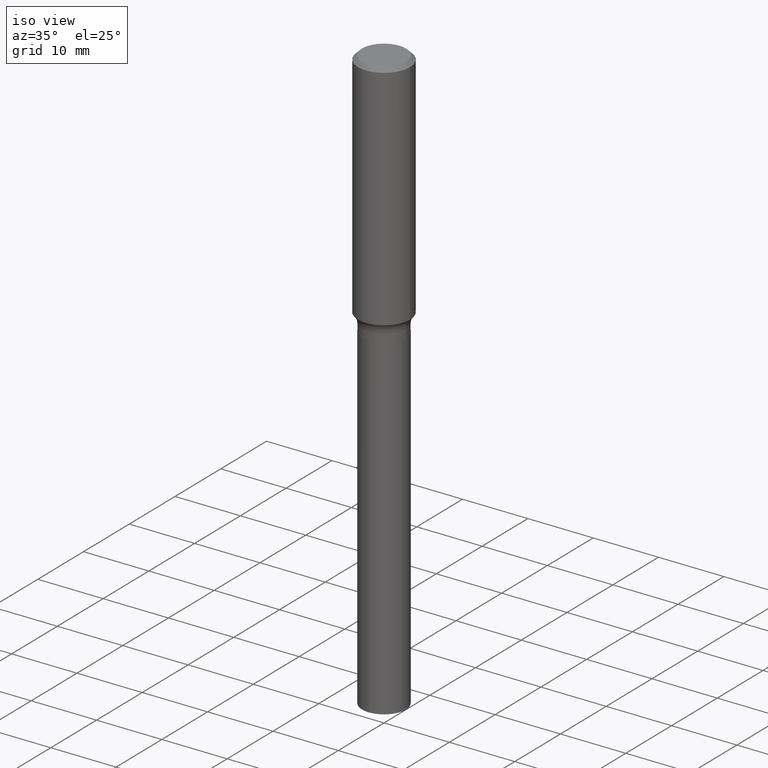
[diagram: clean part render]
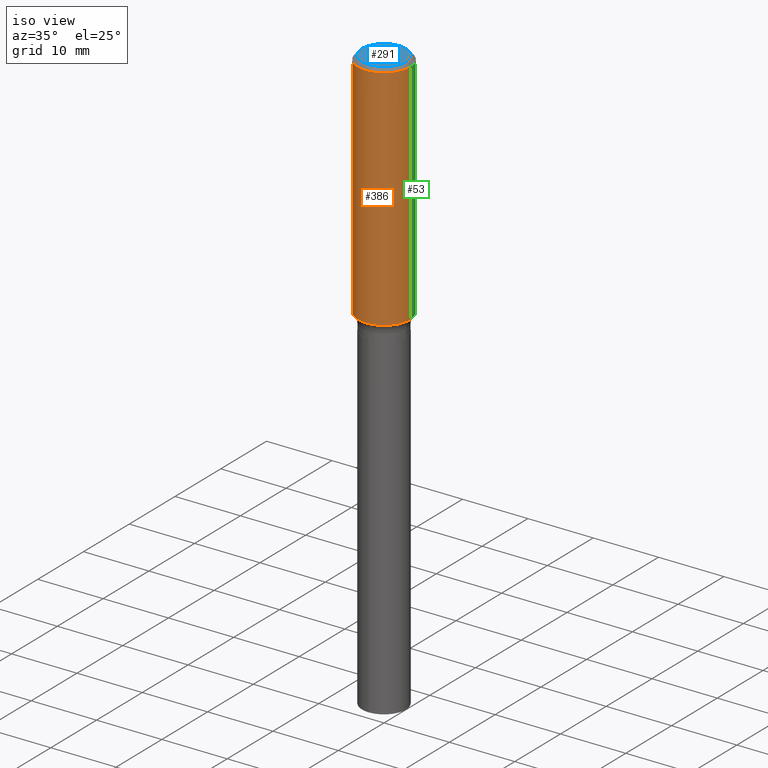
[diagram: same view with three faces highlighted in distinct colors, each labeled with its STEP entity id]
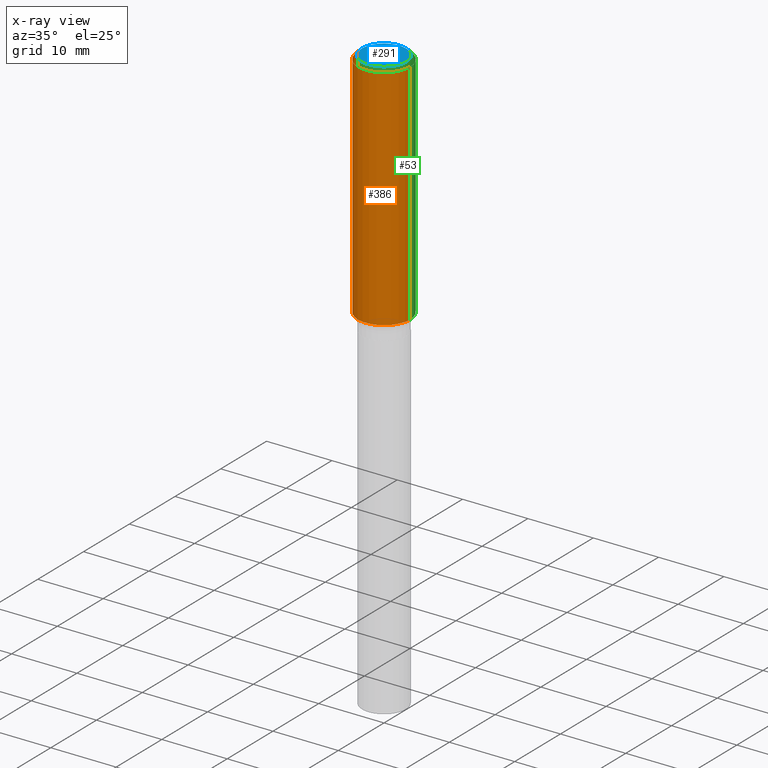
[diagram: x-ray of the same camera — body ghosted, the three highlighted faces saturated]
A machine part, iso view with three faces highlighted in distinct colors.
The next image is the same camera in x-ray (body ghosted, the three faces saturated) — at least one of them is partly hidden behind the body in this view.
Their STEP definitions:

[orange] entity #386 — the highlighted cylindrical surface (edge-blend (fillet) strip) has radius 4.0005 mm, axis along (-0, 0, 1).
#5 = EDGE_CURVE ( 'NONE', #181, #278, #190, .T. ) ;
#18 = EDGE_CURVE ( 'NONE', #195, #181, #169, .T. ) ;
#36 = CARTESIAN_POINT ( 'NONE',  ( 0.1575000000000001676, -5.983080965653135818E-15, -1.398622495727142923 ) ) ;
#56 = CARTESIAN_POINT ( 'NONE',  ( -0.1575000000000000844, 1.119104808822158392E-15, -7.747322767151481189E-30 ) ) ;
#70 = CARTESIAN_POINT ( 'NONE',  ( 0.1575000000000000011, -1.182302868365756679E-15, -0.02362500000000015282 ) ) ;
#83 = FACE_OUTER_BOUND ( 'NONE', #137, .T. ) ;
#87 = DIRECTION ( 'NONE',  ( 1.000000000000000000, -6.982962677686267499E-15, 4.876176775795936353E-29 ) ) ;
#112 = DIRECTION ( 'NONE',  ( 1.000000000000000000, -6.982962677686265922E-15, 0.000000000000000000 ) ) ;
#116 = VECTOR ( 'NONE', #335, 39.37007874015748143 ) ;
#120 = ORIENTED_EDGE ( 'NONE', *, *, #5, .T. ) ;
#137 = EDGE_LOOP ( 'NONE', ( #428, #247, #120, #402 ) ) ;
#150 = VERTEX_POINT ( 'NONE', #154 ) ;
#154 = CARTESIAN_POINT ( 'NONE',  ( -0.1575000000000000011, -1.363770486451699292E-15, -0.02362500000000015282 ) ) ;
#165 = DIRECTION ( 'NONE',  ( -2.445468806185136597E-29, 3.491481338843145583E-15, 1.000000000000000000 ) ) ;
#169 = CIRCLE ( 'NONE', #387, 0.1575000000000001676 ) ;
#178 = DIRECTION ( 'NONE',  ( 1.000000000000000000, -6.982962677686267499E-15, 0.000000000000000000 ) ) ;
#181 = VERTEX_POINT ( 'NONE', #36 ) ;
#190 = LINE ( 'NONE', #381, #210 ) ;
#192 = CARTESIAN_POINT ( 'NONE',  ( 5.777420054612421980E-31, -8.248624663016985234E-17, -0.02362500000000015282 ) ) ;
#195 = VERTEX_POINT ( 'NONE', #225 ) ;
#210 = VECTOR ( 'NONE', #455, 39.37007874015748143 ) ;
#212 = CIRCLE ( 'NONE', #252, 0.1575000000000000011 ) ;
#225 = CARTESIAN_POINT ( 'NONE',  ( -0.1575000000000001676, -3.764159535095387579E-15, -1.398622495727142923 ) ) ;
#247 = ORIENTED_EDGE ( 'NONE', *, *, #18, .T. ) ;
#248 = CARTESIAN_POINT ( 'NONE',  ( 0.000000000000000000, 0.000000000000000000, 0.000000000000000000 ) ) ;
#252 = AXIS2_PLACEMENT_3D ( 'NONE', #192, #388, #112 ) ;
#275 = EDGE_CURVE ( 'NONE', #150, #278, #212, .T. ) ;
#278 = VERTEX_POINT ( 'NONE', #70 ) ;
#297 = LINE ( 'NONE', #56, #116 ) ;
#308 = DIRECTION ( 'NONE',  ( -2.445468806185136597E-29, 3.491481338843145583E-15, 1.000000000000000000 ) ) ;
#324 = CYLINDRICAL_SURFACE ( 'NONE', #426, 0.1575000000000000844 ) ;
#335 = DIRECTION ( 'NONE',  ( -2.445468806185136877E-29, 3.491481338843145188E-15, 1.000000000000000000 ) ) ;
#351 = CARTESIAN_POINT ( 'NONE',  ( 3.420287684929532829E-29, -4.883264343917545972E-15, -1.398622495727142923 ) ) ;
#381 = CARTESIAN_POINT ( 'NONE',  ( 0.1575000000000000844, -1.099816621735587677E-15, 7.679978421878603638E-30 ) ) ;
#386 = ADVANCED_FACE ( 'NONE', ( #83 ), #324, .T. ) ;
#387 = AXIS2_PLACEMENT_3D ( 'NONE', #351, #308, #178 ) ;
#388 = DIRECTION ( 'NONE',  ( -2.445468806185136597E-29, 3.491481338843145583E-15, 1.000000000000000000 ) ) ;
#402 = ORIENTED_EDGE ( 'NONE', *, *, #275, .F. ) ;
#426 = AXIS2_PLACEMENT_3D ( 'NONE', #248, #165, #87 ) ;
#428 = ORIENTED_EDGE ( 'NONE', *, *, #471, .F. ) ;
#455 = DIRECTION ( 'NONE',  ( -2.445468806185136877E-29, 3.491481338843145188E-15, 1.000000000000000000 ) ) ;
#471 = EDGE_CURVE ( 'NONE', #195, #150, #297, .T. ) ;

[blue] entity #291 — the highlighted planar face has unit normal (0, -0, -1).
#3 = CARTESIAN_POINT ( 'NONE',  ( -1.002970424325032604E-46, 1.431975951230895391E-32, 4.101342130344482109E-18 ) ) ;
#10 = PLANE ( 'NONE',  #336 ) ;
#19 = VERTEX_POINT ( 'NONE', #75 ) ;
#23 = EDGE_CURVE ( 'NONE', #19, #435, #86, .T. ) ;
#35 = DIRECTION ( 'NONE',  ( 1.000000000000000000, -6.982962677686266711E-15, 4.876170806578254279E-29 ) ) ;
#46 = DIRECTION ( 'NONE',  ( 2.438088387897960049E-29, -3.491481338843145188E-15, -1.000000000000000000 ) ) ;
#75 = CARTESIAN_POINT ( 'NONE',  ( 0.1338749999999999940, -1.040731925365424925E-15, 4.101342130351390035E-18 ) ) ;
#86 = CIRCLE ( 'NONE', #159, 0.1338749999999999940 ) ;
#123 = DIRECTION ( 'NONE',  ( 1.000000000000000000, -6.982962677686266711E-15, 4.876170806578254279E-29 ) ) ;
#131 = CARTESIAN_POINT ( 'NONE',  ( -5.014852121625163022E-47, 7.159879756154476955E-33, 2.050671065172241055E-18 ) ) ;
#132 = ORIENTED_EDGE ( 'NONE', *, *, #23, .T. ) ;
#159 = AXIS2_PLACEMENT_3D ( 'NONE', #3, #488, #35 ) ;
#163 = FACE_OUTER_BOUND ( 'NONE', #207, .T. ) ;
#207 = EDGE_LOOP ( 'NONE', ( #214, #132 ) ) ;
#214 = ORIENTED_EDGE ( 'NONE', *, *, #356, .T. ) ;
#269 = CIRCLE ( 'NONE', #327, 0.1338749999999999940 ) ;
#279 = CARTESIAN_POINT ( 'NONE',  ( -0.1338749999999999940, 9.760872517903331886E-16, 4.101342130337800673E-18 ) ) ;
#291 = ADVANCED_FACE ( 'NONE', ( #163 ), #10, .F. ) ;
#327 = AXIS2_PLACEMENT_3D ( 'NONE', #365, #363, #123 ) ;
#336 = AXIS2_PLACEMENT_3D ( 'NONE', #131, #46, #473 ) ;
#356 = EDGE_CURVE ( 'NONE', #435, #19, #269, .T. ) ;
#363 = DIRECTION ( 'NONE',  ( -2.445468806185136597E-29, 3.491481338843145583E-15, 1.000000000000000000 ) ) ;
#365 = CARTESIAN_POINT ( 'NONE',  ( -1.002970424325032604E-46, 1.431975951230895391E-32, 4.101342130344482109E-18 ) ) ;
#435 = VERTEX_POINT ( 'NONE', #279 ) ;
#473 = DIRECTION ( 'NONE',  ( -1.000000000000000000, 6.982962677686265922E-15, -4.876176775795935793E-29 ) ) ;
#488 = DIRECTION ( 'NONE',  ( -2.445468806185136597E-29, 3.491481338843145583E-15, 1.000000000000000000 ) ) ;

[green] entity #53 — the highlighted cylindrical surface (edge-blend (fillet) strip) has radius 4.0005 mm, axis along (-0, 0, 1).
#5 = EDGE_CURVE ( 'NONE', #181, #278, #190, .T. ) ;
#36 = CARTESIAN_POINT ( 'NONE',  ( 0.1575000000000001676, -5.983080965653135818E-15, -1.398622495727142923 ) ) ;
#43 = CIRCLE ( 'NONE', #244, 0.1575000000000001676 ) ;
#53 = ADVANCED_FACE ( 'NONE', ( #358 ), #423, .T. ) ;
#56 = CARTESIAN_POINT ( 'NONE',  ( -0.1575000000000000844, 1.119104808822158392E-15, -7.747322767151481189E-30 ) ) ;
#64 = DIRECTION ( 'NONE',  ( 1.000000000000000000, -6.982962677686265922E-15, 0.000000000000000000 ) ) ;
#70 = CARTESIAN_POINT ( 'NONE',  ( 0.1575000000000000011, -1.182302868365756679E-15, -0.02362500000000015282 ) ) ;
#76 = ORIENTED_EDGE ( 'NONE', *, *, #216, .T. ) ;
#78 = EDGE_CURVE ( 'NONE', #278, #150, #489, .T. ) ;
#114 = DIRECTION ( 'NONE',  ( 1.000000000000000000, -6.982962677686267499E-15, 0.000000000000000000 ) ) ;
#116 = VECTOR ( 'NONE', #335, 39.37007874015748143 ) ;
#150 = VERTEX_POINT ( 'NONE', #154 ) ;
#154 = CARTESIAN_POINT ( 'NONE',  ( -0.1575000000000000011, -1.363770486451699292E-15, -0.02362500000000015282 ) ) ;
#156 = CARTESIAN_POINT ( 'NONE',  ( 0.000000000000000000, 0.000000000000000000, 0.000000000000000000 ) ) ;
#181 = VERTEX_POINT ( 'NONE', #36 ) ;
#185 = AXIS2_PLACEMENT_3D ( 'NONE', #156, #191, #318 ) ;
#190 = LINE ( 'NONE', #381, #210 ) ;
#191 = DIRECTION ( 'NONE',  ( -2.445468806185136597E-29, 3.491481338843145583E-15, 1.000000000000000000 ) ) ;
#195 = VERTEX_POINT ( 'NONE', #225 ) ;
#210 = VECTOR ( 'NONE', #455, 39.37007874015748143 ) ;
#216 = EDGE_CURVE ( 'NONE', #181, #195, #43, .T. ) ;
#225 = CARTESIAN_POINT ( 'NONE',  ( -0.1575000000000001676, -3.764159535095387579E-15, -1.398622495727142923 ) ) ;
#239 = ORIENTED_EDGE ( 'NONE', *, *, #78, .F. ) ;
#244 = AXIS2_PLACEMENT_3D ( 'NONE', #311, #306, #114 ) ;
#251 = ORIENTED_EDGE ( 'NONE', *, *, #5, .F. ) ;
#266 = CARTESIAN_POINT ( 'NONE',  ( 5.777420054612421980E-31, -8.248624663016985234E-17, -0.02362500000000015282 ) ) ;
#278 = VERTEX_POINT ( 'NONE', #70 ) ;
#297 = LINE ( 'NONE', #56, #116 ) ;
#306 = DIRECTION ( 'NONE',  ( -2.445468806185136597E-29, 3.491481338843145583E-15, 1.000000000000000000 ) ) ;
#311 = CARTESIAN_POINT ( 'NONE',  ( 3.420287684929532829E-29, -4.883264343917545972E-15, -1.398622495727142923 ) ) ;
#318 = DIRECTION ( 'NONE',  ( 1.000000000000000000, -6.982962677686267499E-15, 4.876176775795936353E-29 ) ) ;
#331 = ORIENTED_EDGE ( 'NONE', *, *, #471, .T. ) ;
#335 = DIRECTION ( 'NONE',  ( -2.445468806185136877E-29, 3.491481338843145188E-15, 1.000000000000000000 ) ) ;
#358 = FACE_OUTER_BOUND ( 'NONE', #478, .T. ) ;
#381 = CARTESIAN_POINT ( 'NONE',  ( 0.1575000000000000844, -1.099816621735587677E-15, 7.679978421878603638E-30 ) ) ;
#417 = DIRECTION ( 'NONE',  ( -2.445468806185136597E-29, 3.491481338843145583E-15, 1.000000000000000000 ) ) ;
#419 = AXIS2_PLACEMENT_3D ( 'NONE', #266, #417, #64 ) ;
#423 = CYLINDRICAL_SURFACE ( 'NONE', #185, 0.1575000000000000844 ) ;
#455 = DIRECTION ( 'NONE',  ( -2.445468806185136877E-29, 3.491481338843145188E-15, 1.000000000000000000 ) ) ;
#471 = EDGE_CURVE ( 'NONE', #195, #150, #297, .T. ) ;
#478 = EDGE_LOOP ( 'NONE', ( #76, #331, #239, #251 ) ) ;
#489 = CIRCLE ( 'NONE', #419, 0.1575000000000000011 ) ;